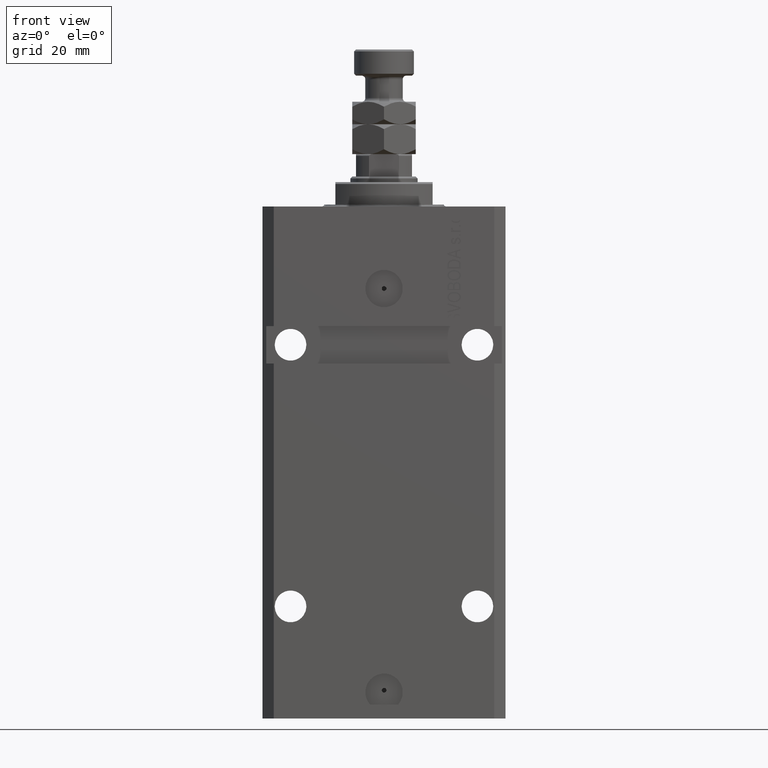
[diagram: clean part render]
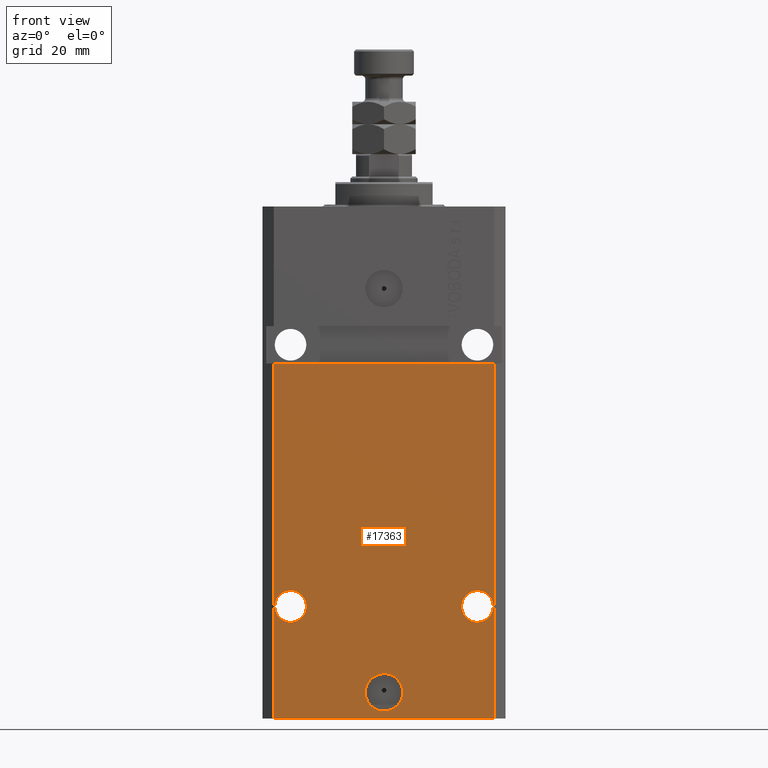
[diagram: same view with one face highlighted and labeled with its STEP entity id]
A machine part, front view. The second image highlights one B-rep face of the part: STEP entity #17363.
In plain terms, the highlighted planar face has unit normal (0, -1, 0).
Its self-contained STEP definition (entity closure, byte-faithful):
#484 = DIRECTION ( 'NONE',  ( 1.000000000000000000, 0.000000000000000000, 0.000000000000000000 ) ) ;
#657 = CARTESIAN_POINT ( 'NONE',  ( 20.75000000001096012, -22.49999999999949196, -107.0000000000000000 ) ) ;
#913 = VERTEX_POINT ( 'NONE', #657 ) ;
#924 = EDGE_CURVE ( 'NONE', #41034, #34075, #40656, .T. ) ;
#1452 = VERTEX_POINT ( 'NONE', #1530 ) ;
#1530 = CARTESIAN_POINT ( 'NONE',  ( 5.000000000000008882, -22.49999999999949551, -130.0000000000000000 ) ) ;
#1900 = LINE ( 'NONE', #27166, #1934 ) ;
#1934 = VECTOR ( 'NONE', #23590, 1000.000000000000000 ) ;
#3066 = CARTESIAN_POINT ( 'NONE',  ( 29.49999999999650413, -22.49999999999949196, -137.0000000000000000 ) ) ;
#3157 = EDGE_CURVE ( 'NONE', #38856, #20915, #16429, .T. ) ;
#5206 = ORIENTED_EDGE ( 'NONE', *, *, #20067, .F. ) ;
#5874 = CIRCLE ( 'NONE', #12656, 5.000000000000006217 ) ;
#6919 = DIRECTION ( 'NONE',  ( 1.176083712526788232E-16, -1.000000000000000000, 0.000000000000000000 ) ) ;
#7714 = DIRECTION ( 'NONE',  ( 1.176083712526788232E-16, -1.000000000000000000, 0.000000000000000000 ) ) ;
#7952 = CARTESIAN_POINT ( 'NONE',  ( -25.00000000000000355, -22.49999999999949907, -107.0000000000000000 ) ) ;
#8085 = CARTESIAN_POINT ( 'NONE',  ( -25.00000000000000355, -22.49999999999949907, -107.0000000000000000 ) ) ;
#8666 = AXIS2_PLACEMENT_3D ( 'NONE', #8085, #29820, #9674 ) ;
#9444 = DIRECTION ( 'NONE',  ( 1.000000000000000000, 0.000000000000000000, 0.000000000000000000 ) ) ;
#9547 = PLANE ( 'NONE',  #20377 ) ;
#9674 = DIRECTION ( 'NONE',  ( -1.000000000000000000, 0.000000000000000000, 0.000000000000000000 ) ) ;
#10240 = FACE_BOUND ( 'NONE', #13980, .T. ) ;
#11012 = ORIENTED_EDGE ( 'NONE', *, *, #38952, .T. ) ;
#12656 = AXIS2_PLACEMENT_3D ( 'NONE', #25278, #29275, #484 ) ;
#13561 = CARTESIAN_POINT ( 'NONE',  ( 25.00000000000001066, -22.49999999999949196, -107.0000000000000000 ) ) ;
#13789 = FACE_OUTER_BOUND ( 'NONE', #25604, .T. ) ;
#13922 = DIRECTION ( 'NONE',  ( 1.176083712526788232E-16, -1.000000000000000000, 0.000000000000000000 ) ) ;
#13930 = CARTESIAN_POINT ( 'NONE',  ( -29.49999999999650413, -22.49999999999949907, -41.99999999999999289 ) ) ;
#13980 = EDGE_LOOP ( 'NONE', ( #36102, #18874 ) ) ;
#14213 = EDGE_CURVE ( 'NONE', #38856, #42086, #42323, .T. ) ;
#15335 = VECTOR ( 'NONE', #27507, 1000.000000000000000 ) ;
#15411 = ORIENTED_EDGE ( 'NONE', *, *, #14213, .T. ) ;
#16360 = DIRECTION ( 'NONE',  ( 0.000000000000000000, 0.000000000000000000, 1.000000000000000000 ) ) ;
#16429 = LINE ( 'NONE', #27522, #19623 ) ;
#16596 = CARTESIAN_POINT ( 'NONE',  ( 29.49999999999650413, -22.49999999999949196, -137.0000000000000000 ) ) ;
#16894 = CIRCLE ( 'NONE', #46246, 5.000000000000006217 ) ;
#17352 = EDGE_CURVE ( 'NONE', #19901, #913, #24877, .T. ) ;
#17363 = ADVANCED_FACE ( 'NONE', ( #31275, #10240, #24870, #13789 ), #9547, .T. ) ;
#17808 = CARTESIAN_POINT ( 'NONE',  ( -29.49999999999650413, -22.49999999999949907, -137.0000000000000000 ) ) ;
#18057 = AXIS2_PLACEMENT_3D ( 'NONE', #7952, #7714, #36747 ) ;
#18874 = ORIENTED_EDGE ( 'NONE', *, *, #30944, .F. ) ;
#19623 = VECTOR ( 'NONE', #45652, 1000.000000000000000 ) ;
#19901 = VERTEX_POINT ( 'NONE', #43496 ) ;
#20067 = EDGE_CURVE ( 'NONE', #1452, #41234, #16894, .T. ) ;
#20377 = AXIS2_PLACEMENT_3D ( 'NONE', #45641, #28185, #31493 ) ;
#20743 = ORIENTED_EDGE ( 'NONE', *, *, #28174, .F. ) ;
#20915 = VERTEX_POINT ( 'NONE', #13930 ) ;
#21508 = CIRCLE ( 'NONE', #8666, 4.249999999989050536 ) ;
#21707 = EDGE_LOOP ( 'NONE', ( #39019, #23612 ) ) ;
#23189 = DIRECTION ( 'NONE',  ( 1.000000000000000000, 0.000000000000000000, 0.000000000000000000 ) ) ;
#23590 = DIRECTION ( 'NONE',  ( 1.000000000000000000, 1.067522139062765303E-16, 1.067522139062765303E-16 ) ) ;
#23612 = ORIENTED_EDGE ( 'NONE', *, *, #26686, .F. ) ;
#23925 = CARTESIAN_POINT ( 'NONE',  ( -29.49999999999650413, -22.49999999999949907, -137.0000000000000000 ) ) ;
#24734 = VECTOR ( 'NONE', #16360, 1000.000000000000000 ) ;
#24870 = FACE_BOUND ( 'NONE', #21707, .T. ) ;
#24877 = CIRCLE ( 'NONE', #36911, 4.249999999989050536 ) ;
#24879 = CARTESIAN_POINT ( 'NONE',  ( 29.49999999999650058, -22.49999999999949196, -41.99999999999998579 ) ) ;
#25278 = CARTESIAN_POINT ( 'NONE',  ( 2.646188353185214061E-15, -22.49999999999949551, -130.0000000000000000 ) ) ;
#25604 = EDGE_LOOP ( 'NONE', ( #20743, #38187, #15411, #11012 ) ) ;
#26160 = AXIS2_PLACEMENT_3D ( 'NONE', #37354, #36882, #23189 ) ;
#26686 = EDGE_CURVE ( 'NONE', #34075, #41034, #21508, .T. ) ;
#27166 = CARTESIAN_POINT ( 'NONE',  ( -32.49999999999650413, -22.49999999999949907, -41.99999999999999289 ) ) ;
#27507 = DIRECTION ( 'NONE',  ( 1.000000000000000000, 1.176083712526788232E-16, 0.000000000000000000 ) ) ;
#27522 = CARTESIAN_POINT ( 'NONE',  ( -29.49999999999650413, -22.49999999999949907, -137.0000000000000000 ) ) ;
#28174 = EDGE_CURVE ( 'NONE', #20915, #30058, #1900, .T. ) ;
#28185 = DIRECTION ( 'NONE',  ( 1.176083712526788232E-16, -1.000000000000000000, 0.000000000000000000 ) ) ;
#29275 = DIRECTION ( 'NONE',  ( 1.176083712526788232E-16, -1.000000000000000000, 0.000000000000000000 ) ) ;
#29369 = CARTESIAN_POINT ( 'NONE',  ( -5.000000000000003553, -22.49999999999949551, -130.0000000000000000 ) ) ;
#29820 = DIRECTION ( 'NONE',  ( 1.176083712526788232E-16, -1.000000000000000000, 0.000000000000000000 ) ) ;
#30058 = VERTEX_POINT ( 'NONE', #24879 ) ;
#30121 = ORIENTED_EDGE ( 'NONE', *, *, #34055, .F. ) ;
#30944 = EDGE_CURVE ( 'NONE', #913, #19901, #39713, .T. ) ;
#31275 = FACE_BOUND ( 'NONE', #45853, .T. ) ;
#31493 = DIRECTION ( 'NONE',  ( 1.000000000000000000, 1.176083712526788232E-16, 0.000000000000000000 ) ) ;
#34055 = EDGE_CURVE ( 'NONE', #41234, #1452, #5874, .T. ) ;
#34075 = VERTEX_POINT ( 'NONE', #39643 ) ;
#36102 = ORIENTED_EDGE ( 'NONE', *, *, #17352, .F. ) ;
#36747 = DIRECTION ( 'NONE',  ( -1.000000000000000000, 0.000000000000000000, 0.000000000000000000 ) ) ;
#36882 = DIRECTION ( 'NONE',  ( 1.176083712526788232E-16, -1.000000000000000000, 0.000000000000000000 ) ) ;
#36911 = AXIS2_PLACEMENT_3D ( 'NONE', #13561, #6919, #46091 ) ;
#37354 = CARTESIAN_POINT ( 'NONE',  ( 25.00000000000001066, -22.49999999999949196, -107.0000000000000000 ) ) ;
#37803 = LINE ( 'NONE', #16596, #24734 ) ;
#38187 = ORIENTED_EDGE ( 'NONE', *, *, #3157, .F. ) ;
#38856 = VERTEX_POINT ( 'NONE', #17808 ) ;
#38952 = EDGE_CURVE ( 'NONE', #42086, #30058, #37803, .T. ) ;
#39019 = ORIENTED_EDGE ( 'NONE', *, *, #924, .F. ) ;
#39643 = CARTESIAN_POINT ( 'NONE',  ( -29.24999999998905409, -22.49999999999949907, -107.0000000000000000 ) ) ;
#39713 = CIRCLE ( 'NONE', #26160, 4.249999999989050536 ) ;
#40543 = CARTESIAN_POINT ( 'NONE',  ( -20.75000000001095302, -22.49999999999949907, -107.0000000000000000 ) ) ;
#40656 = CIRCLE ( 'NONE', #18057, 4.249999999989050536 ) ;
#41034 = VERTEX_POINT ( 'NONE', #40543 ) ;
#41234 = VERTEX_POINT ( 'NONE', #29369 ) ;
#42086 = VERTEX_POINT ( 'NONE', #3066 ) ;
#42323 = LINE ( 'NONE', #23925, #15335 ) ;
#43496 = CARTESIAN_POINT ( 'NONE',  ( 29.24999999998906119, -22.49999999999949196, -107.0000000000000000 ) ) ;
#45641 = CARTESIAN_POINT ( 'NONE',  ( -29.49999999999650413, -22.49999999999949907, -137.0000000000000000 ) ) ;
#45652 = DIRECTION ( 'NONE',  ( 0.000000000000000000, 0.000000000000000000, 1.000000000000000000 ) ) ;
#45853 = EDGE_LOOP ( 'NONE', ( #5206, #30121 ) ) ;
#46091 = DIRECTION ( 'NONE',  ( 1.000000000000000000, 0.000000000000000000, 0.000000000000000000 ) ) ;
#46220 = CARTESIAN_POINT ( 'NONE',  ( 2.646188353185214061E-15, -22.49999999999949551, -130.0000000000000000 ) ) ;
#46246 = AXIS2_PLACEMENT_3D ( 'NONE', #46220, #13922, #9444 ) ;